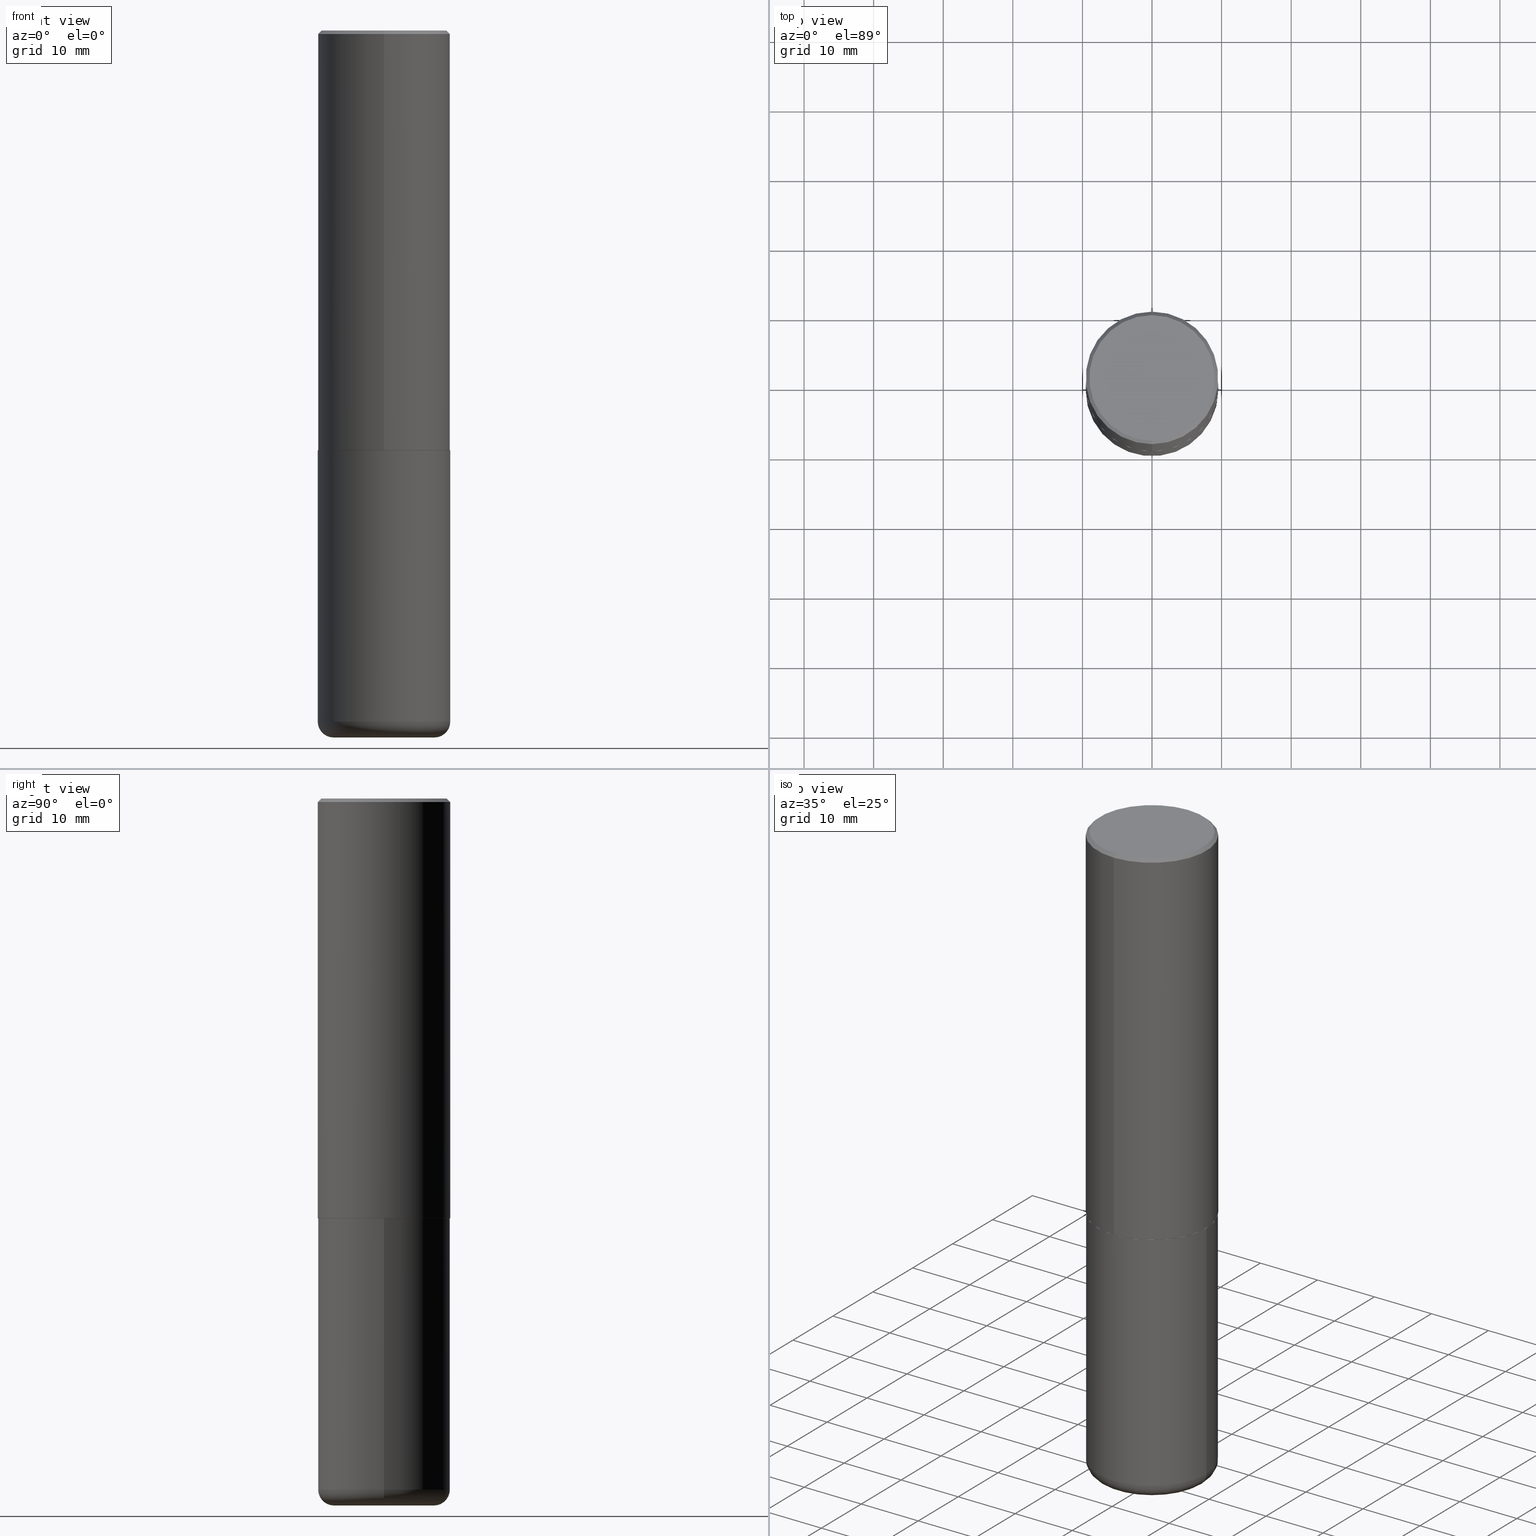
[diagram: canonical four-view strip — front | top / right | iso, engineering-drawing reading convention]
A machine part, canonical four-view strip (front | top / right | iso — engineering-drawing reading convention). The complete STEP part file that produces these views, byte-faithful:
ISO-10303-21;
HEADER;
FILE_DESCRIPTION (( 'STEP AP203' ),
    '1' );
FILE_NAME ('37226.STEP',
    '2024-03-01T22:18:53',
    ( '' ),
    ( '' ),
    'SwSTEP 2.0',
    'SolidWorks 2023',
    '' );
FILE_SCHEMA (( 'CONFIG_CONTROL_DESIGN' ));
ENDSEC;

DATA;
#1 = CARTESIAN_POINT ( 'NONE',  ( -2.618611004132351200E-15, -0.3750000000000001665, 1.309785868171475725E-15 ) ) ;
#2 = ADVANCED_FACE ( 'NONE', ( #352 ), #25, .T. ) ;
#3 = CARTESIAN_POINT ( 'NONE',  ( 2.618611004132350411E-15, 0.3749999999999999445, -0.02000000000000141595 ) ) ;
#4 = EDGE_CURVE ( 'NONE', #316, #211, #69, .T. ) ;
#5 = CONICAL_SURFACE ( 'NONE', #128, 0.3750000000000000555, 0.7853981633974456145 ) ;
#6 = CARTESIAN_POINT ( 'NONE',  ( 2.478951750578623026E-15, 0.3549999999999997602, -1.105245105140992969E-15 ) ) ;
#7 = DIRECTION ( 'NONE',  ( -6.982962677686265922E-15, -1.000000000000000000, 3.494488891895536035E-15 ) ) ;
#8 = LINE ( 'NONE', #137, #309 ) ;
#9 = CC_DESIGN_APPROVAL ( #40, ( #273 ) ) ;
#10 = CC_DESIGN_DATE_AND_TIME_ASSIGNMENT ( #190, #153, ( #273 ) ) ;
#11 = DIRECTION ( 'NONE',  ( 1.000000000000000000, -6.982962677686266711E-15, 0.000000000000000000 ) ) ;
#12 = CARTESIAN_POINT ( 'NONE',  ( -0.3749999999999999445, -1.098715677577632652E-14, -3.910000000000000142 ) ) ;
#13 = DIRECTION ( 'NONE',  ( -6.982962677686266711E-15, -1.000000000000000000, 3.652203200085913145E-15 ) ) ;
#14 = EDGE_CURVE ( 'NONE', #244, #279, #59, .T. ) ;
#15 = DIRECTION ( 'NONE',  ( 1.000000000000000000, -6.982962677686263555E-15, 4.883557194083111219E-29 ) ) ;
#16 = CIRCLE ( 'NONE', #31, 0.08999999999999992728 ) ;
#17 = CC_DESIGN_APPROVAL ( #369, ( #173 ) ) ;
#18 = ORIENTED_EDGE ( 'NONE', *, *, #14, .F. ) ;
#19 = AXIS2_PLACEMENT_3D ( 'NONE', #36, #391, #165 ) ;
#20 = DIRECTION ( 'NONE',  ( 1.000000000000000000, -6.982962677686266711E-15, 4.876176775795935793E-29 ) ) ;
#21 = VERTEX_POINT ( 'NONE', #407 ) ;
#22 = EDGE_CURVE ( 'NONE', #377, #224, #260, .T. ) ;
#23 = APPLICATION_PROTOCOL_DEFINITION ( 'international standard', 'config_control_design', 1994, #34 ) ;
#24 = CARTESIAN_POINT ( 'NONE',  ( 5.803419400614030161E-29, -8.291817736104219412E-15, -2.373999999999999666 ) ) ;
#25 = CYLINDRICAL_SURFACE ( 'NONE', #79, 0.3749999999999999445 ) ;
#26 = ORIENTED_EDGE ( 'NONE', *, *, #87, .T. ) ;
#27 = FACE_OUTER_BOUND ( 'NONE', #48, .T. ) ;
#28 = ADVANCED_FACE ( 'NONE', ( #217 ), #349, .T. ) ;
#29 = PERSON_AND_ORGANIZATION ( #155, #193 ) ;
#30 = ORIENTED_EDGE ( 'NONE', *, *, #132, .T. ) ;
#31 = AXIS2_PLACEMENT_3D ( 'NONE', #200, #333, #41 ) ;
#32 = ADVANCED_FACE ( 'NONE', ( #27 ), #181, .T. ) ;
#33 = CARTESIAN_POINT ( 'NONE',  ( 5.803419400614030161E-29, -8.291817736104219412E-15, -2.373999999999999666 ) ) ;
#34 = APPLICATION_CONTEXT ( 'configuration controlled 3d designs of mechanical parts and assemblies' ) ;
#35 = CARTESIAN_POINT ( 'NONE',  ( 5.805863974919259746E-29, -8.295310498419343824E-15, -2.375000000000000000 ) ) ;
#36 = CARTESIAN_POINT ( 'NONE',  ( 4.889148610458350090E-31, -6.985524630247905373E-17, -0.02000000000000010797 ) ) ;
#37 = AXIS2_PLACEMENT_3D ( 'NONE', #33, #102, #363 ) ;
#38 = PLANE ( 'NONE',  #42 ) ;
#39 = DIRECTION ( 'NONE',  ( -2.444574305229161733E-29, 3.492762315123933951E-15, 1.000000000000000000 ) ) ;
#40 = APPROVAL ( #251, 'UNSPECIFIED' ) ;
#41 = DIRECTION ( 'NONE',  ( 1.000000000000000000, -6.982962677686273810E-15, 0.000000000000000000 ) ) ;
#42 = AXIS2_PLACEMENT_3D ( 'NONE', #396, #233, #259 ) ;
#43 = CARTESIAN_POINT ( 'NONE',  ( 2.660982545421634357E-15, 0.3739999999999917835, -2.375000000000001776 ) ) ;
#44 = SHAPE_DEFINITION_REPRESENTATION ( #103, #313 ) ;
#45 = CARTESIAN_POINT ( 'NONE',  ( -2.572686749164323547E-15, -0.3750000000000001110, -0.01999999999999879652 ) ) ;
#46 = EDGE_LOOP ( 'NONE', ( #161, #399, #275, #325 ) ) ;
#47 = DIRECTION ( 'NONE',  ( -6.982962677686266711E-15, -1.000000000000000000, 3.652203200085913145E-15 ) ) ;
#48 = EDGE_LOOP ( 'NONE', ( #183, #143, #337, #242 ) ) ;
#49 = TOROIDAL_SURFACE ( 'NONE', #65, 0.2850000000000000311, 0.08999999999999989952 ) ;
#50 = DIRECTION ( 'NONE',  ( -2.444574305229161733E-29, 3.492762315123933951E-15, 1.000000000000000000 ) ) ;
#51 = ORIENTED_EDGE ( 'NONE', *, *, #416, .F. ) ;
#52 = CC_DESIGN_PERSON_AND_ORGANIZATION_ASSIGNMENT ( #29, #381, ( #291 ) ) ;
#53 = CALENDAR_DATE ( 2024, 1, 3 ) ;
#54 = VERTEX_POINT ( 'NONE', #290 ) ;
#55 = PERSON_AND_ORGANIZATION ( #155, #193 ) ;
#56 = AXIS2_PLACEMENT_3D ( 'NONE', #35, #199, #196 ) ;
#57 = ORIENTED_EDGE ( 'NONE', *, *, #362, .T. ) ;
#58 = AXIS2_PLACEMENT_3D ( 'NONE', #412, #62, #410 ) ;
#59 = CIRCLE ( 'NONE', #400, 0.3750000000000002776 ) ;
#60 = PERSON_AND_ORGANIZATION ( #155, #193 ) ;
#61 = ORIENTED_EDGE ( 'NONE', *, *, #174, .F. ) ;
#62 = DIRECTION ( 'NONE',  ( 0.000000000000000000, 0.000000000000000000, 1.000000000000000000 ) ) ;
#63 = ORIENTED_EDGE ( 'NONE', *, *, #76, .T. ) ;
#64 = DIRECTION ( 'NONE',  ( 1.000000000000000000, -6.982962677686266711E-15, 4.876176775795935793E-29 ) ) ;
#65 = AXIS2_PLACEMENT_3D ( 'NONE', #305, #404, #15 ) ;
#66 = CARTESIAN_POINT ( 'NONE',  ( 5.805863974919259746E-29, -8.295310498419343824E-15, -2.375000000000000000 ) ) ;
#67 = DIRECTION ( 'NONE',  ( 6.982962677686265922E-15, 1.000000000000000000, -3.492762315123933951E-15 ) ) ;
#68 = CARTESIAN_POINT ( 'NONE',  ( -2.611628041454605626E-15, -0.3740000000000082703, -2.374999999999998668 ) ) ;
#69 = CIRCLE ( 'NONE', #331, 0.3739999999999999991 ) ;
#70 = AXIS2_PLACEMENT_3D ( 'NONE', #171, #301, #11 ) ;
#71 = AXIS2_PLACEMENT_3D ( 'NONE', #66, #296, #195 ) ;
#72 = PLANE ( 'NONE',  #71 ) ;
#73 = CARTESIAN_POINT ( 'NONE',  ( -0.2850000000000000311, -1.162664523796041410E-14, -3.910000000000000142 ) ) ;
#74 = CARTESIAN_POINT ( 'NONE',  ( 2.664535259100406068E-15, 0.3749999999999920619, -2.374000000000001442 ) ) ;
#75 = ORIENTED_EDGE ( 'NONE', *, *, #174, .T. ) ;
#76 = EDGE_CURVE ( 'NONE', #346, #224, #360, .T. ) ;
#77 = VECTOR ( 'NONE', #272, 39.37007874015748854 ) ;
#78 = DIRECTION ( 'NONE',  ( -2.445468806185136597E-29, 3.491481338843145583E-15, 1.000000000000000000 ) ) ;
#79 = AXIS2_PLACEMENT_3D ( 'NONE', #154, #281, #64 ) ;
#80 = EDGE_LOOP ( 'NONE', ( #405, #320 ) ) ;
#81 = CARTESIAN_POINT ( 'NONE',  ( -0.2850000000000000311, -1.146401766711631116E-14, -4.000000000000000000 ) ) ;
#82 = FACE_OUTER_BOUND ( 'NONE', #418, .T. ) ;
#83 = CONICAL_SURFACE ( 'NONE', #326, 0.3739999999999999991, 0.7853981633974141952 ) ;
#84 = APPROVAL_DATE_TIME ( #254, #202 ) ;
#85 = LOCAL_TIME ( 17, 18, 53.00000000000000000, #248 ) ;
#86 = ORIENTED_EDGE ( 'NONE', *, *, #132, .F. ) ;
#87 = EDGE_CURVE ( 'NONE', #385, #215, #372, .T. ) ;
#88 = COORDINATED_UNIVERSAL_TIME_OFFSET ( 5, 0, .BEHIND. ) ;
#89 = ORIENTED_EDGE ( 'NONE', *, *, #121, .F. ) ;
#90 = CALENDAR_DATE ( 2024, 1, 3 ) ;
#91 = DIRECTION ( 'NONE',  ( 1.000000000000000000, -6.982962677686266711E-15, 0.000000000000000000 ) ) ;
#92 = ADVANCED_FACE ( 'NONE', ( #105 ), #100, .F. ) ;
#93 = APPROVAL_STATUS ( 'not_yet_approved' ) ;
#94 = AXIS2_PLACEMENT_3D ( 'NONE', #123, #247, #91 ) ;
#95 = ORIENTED_EDGE ( 'NONE', *, *, #311, .F. ) ;
#96 = CIRCLE ( 'NONE', #232, 0.2850000000000000311 ) ;
#97 = ORIENTED_EDGE ( 'NONE', *, *, #151, .F. ) ;
#98 = ORIENTED_EDGE ( 'NONE', *, *, #208, .T. ) ;
#99 = ADVANCED_FACE ( 'NONE', ( #231 ), #72, .F. ) ;
#100 = PLANE ( 'NONE',  #252 ) ;
#101 = AXIS2_PLACEMENT_3D ( 'NONE', #243, #376, #335 ) ;
#102 = DIRECTION ( 'NONE',  ( -2.444574305229161733E-29, 3.492762315123933951E-15, 1.000000000000000000 ) ) ;
#103 = PRODUCT_DEFINITION_SHAPE ( 'NONE', 'NONE',  #273 ) ;
#104 = CARTESIAN_POINT ( 'NONE',  ( 2.618611004132350411E-15, 0.3749999999999999445, -0.02000000000000141595 ) ) ;
#105 = FACE_OUTER_BOUND ( 'NONE', #249, .T. ) ;
#106 = CIRCLE ( 'NONE', #358, 0.3549999999999997602 ) ;
#107 = LOCAL_TIME ( 17, 18, 53.00000000000000000, #129 ) ;
#108 = FACE_OUTER_BOUND ( 'NONE', #212, .T. ) ;
#109 = DIRECTION ( 'NONE',  ( 2.438088387897960049E-29, -3.491481338843145188E-15, -1.000000000000000000 ) ) ;
#110 = EDGE_CURVE ( 'NONE', #316, #279, #8, .T. ) ;
#111 = CARTESIAN_POINT ( 'NONE',  ( 9.781875224740546387E-29, -1.396592535537258233E-14, -4.000000000000000000 ) ) ;
#112 = ORIENTED_EDGE ( 'NONE', *, *, #4, .F. ) ;
#113 = VECTOR ( 'NONE', #138, 39.37007874015748854 ) ;
#114 = MANIFOLD_SOLID_BREP ( 'Body-Move/Copy2[1]', #277 ) ;
#115 = CARTESIAN_POINT ( 'NONE',  ( 0.3750000000000000555, -1.091087918388482013E-14, -2.375000000000000000 ) ) ;
#116 = ORIENTED_EDGE ( 'NONE', *, *, #110, .T. ) ;
#117 = CARTESIAN_POINT ( 'NONE',  ( -2.618611004132293613E-15, -0.3750000000000085487, -2.373999999999998334 ) ) ;
#118 = DIRECTION ( 'NONE',  ( -2.444574305229161733E-29, 3.492762315123933951E-15, 1.000000000000000000 ) ) ;
#119 = EDGE_CURVE ( 'NONE', #211, #316, #276, .T. ) ;
#120 = ORIENTED_EDGE ( 'NONE', *, *, #119, .F. ) ;
#121 = EDGE_CURVE ( 'NONE', #21, #215, #332, .T. ) ;
#122 = PERSON_AND_ORGANIZATION_ROLE ( 'creator' ) ;
#123 = CARTESIAN_POINT ( 'NONE',  ( 5.807988414689699417E-29, -8.292268179752470118E-15, -2.375000000000000000 ) ) ;
#124 = DIMENSIONAL_EXPONENTS ( 1.000000000000000000, 0.000000000000000000, 0.000000000000000000, 0.000000000000000000, 0.000000000000000000, 0.000000000000000000, 0.000000000000000000 ) ;
#125 = MECHANICAL_CONTEXT ( 'NONE', #34, 'mechanical' ) ;
#126 = ORIENTED_EDGE ( 'NONE', *, *, #110, .F. ) ;
#127 = VERTEX_POINT ( 'NONE', #299 ) ;
#128 = AXIS2_PLACEMENT_3D ( 'NONE', #306, #239, #373 ) ;
#129 = COORDINATED_UNIVERSAL_TIME_OFFSET ( 5, 0, .BEHIND. ) ;
#130 = ORIENTED_EDGE ( 'NONE', *, *, #22, .F. ) ;
#131 = DIRECTION ( 'NONE',  ( -2.444574305229161733E-29, 3.492762315123933951E-15, 1.000000000000000000 ) ) ;
#132 = EDGE_CURVE ( 'NONE', #215, #385, #168, .T. ) ;
#133 = CARTESIAN_POINT ( 'NONE',  ( 4.889148610458350090E-31, -6.985524630247905373E-17, -0.02000000000000010797 ) ) ;
#134 = AXIS2_PLACEMENT_3D ( 'NONE', #304, #406, #210 ) ;
#135 = CARTESIAN_POINT ( 'NONE',  ( 0.3749999999999999445, -2.618611004132349622E-15, 1.828566290923475642E-29 ) ) ;
#136 = CC_DESIGN_PERSON_AND_ORGANIZATION_ASSIGNMENT ( #246, #216, ( #220 ) ) ;
#137 = CARTESIAN_POINT ( 'NONE',  ( 2.657429831742832670E-15, 0.3739999999999917835, -2.375000000000001776 ) ) ;
#138 = DIRECTION ( 'NONE',  ( 4.937700262164533054E-15, 0.7071067811865430208, -0.7071067811865517916 ) ) ;
#139 = APPROVAL_PERSON_ORGANIZATION ( #314, #202, #324 ) ;
#140 = CYLINDRICAL_SURFACE ( 'NONE', #317, 0.3749999999999999445 ) ;
#141 = EDGE_CURVE ( 'NONE', #54, #21, #402, .T. ) ;
#142 = CARTESIAN_POINT ( 'NONE',  ( -2.611628041454605626E-15, -0.3740000000000082703, -2.374999999999998668 ) ) ;
#143 = ORIENTED_EDGE ( 'NONE', *, *, #167, .T. ) ;
#144 = CARTESIAN_POINT ( 'NONE',  ( -6.584975069595768119E-45, 9.408489944411256093E-31, 2.693710334560058270E-16 ) ) ;
#145 = ORIENTED_EDGE ( 'NONE', *, *, #141, .T. ) ;
#146 = FACE_OUTER_BOUND ( 'NONE', #179, .T. ) ;
#147 = ORIENTED_EDGE ( 'NONE', *, *, #151, .T. ) ;
#148 = CC_DESIGN_PERSON_AND_ORGANIZATION_ASSIGNMENT ( #283, #122, ( #220 ) ) ;
#149 = CARTESIAN_POINT ( 'NONE',  ( 9.561783032183883600E-29, -1.365169203487670064E-14, -3.910000000000000142 ) ) ;
#150 = DIRECTION ( 'NONE',  ( -2.444574305229161733E-29, 3.492762315123933951E-15, 1.000000000000000000 ) ) ;
#151 = EDGE_CURVE ( 'NONE', #54, #385, #300, .T. ) ;
#152 = DIRECTION ( 'NONE',  ( -6.982962677686266711E-15, -1.000000000000000000, 3.652203200085913145E-15 ) ) ;
#153 = DATE_TIME_ROLE ( 'creation_date' ) ;
#154 = CARTESIAN_POINT ( 'NONE',  ( 0.000000000000000000, 0.000000000000000000, 0.000000000000000000 ) ) ;
#155 = PERSON ( 'UNSPECIFIED', 'UNSPECIFIED', 'UNSPECIFIED', ('UNSPECIFIED'), ('UNSPECIFIED'), ('UNSPECIFIED') ) ;
#156 = CALENDAR_DATE ( 2024, 1, 3 ) ;
#157 = ORIENTED_EDGE ( 'NONE', *, *, #315, .F. ) ;
#158 = LENGTH_MEASURE_WITH_UNIT ( LENGTH_MEASURE( 0.02539999999999999897 ), #319 );
#159 = PERSON_AND_ORGANIZATION_ROLE ( 'creator' ) ;
#160 = AXIS2_PLACEMENT_3D ( 'NONE', #111, #237, #370 ) ;
#161 = ORIENTED_EDGE ( 'NONE', *, *, #76, .F. ) ;
#162 = CC_DESIGN_SECURITY_CLASSIFICATION ( #173, ( #220 ) ) ;
#163 = ADVANCED_FACE ( 'NONE', ( #108 ), #38, .T. ) ;
#164 = DIRECTION ( 'NONE',  ( -1.000000000000000000, 7.105427357600996337E-15, 0.000000000000000000 ) ) ;
#165 = DIRECTION ( 'NONE',  ( -6.982962677686265922E-15, -1.000000000000000000, 3.494488891895536035E-15 ) ) ;
#166 = LINE ( 'NONE', #1, #282 ) ;
#167 = EDGE_CURVE ( 'NONE', #413, #346, #218, .T. ) ;
#168 = CIRCLE ( 'NONE', #365, 0.3750000000000000555 ) ;
#169 = CARTESIAN_POINT ( 'NONE',  ( 9.561783032183883600E-29, -1.365169203487670064E-14, -3.910000000000000142 ) ) ;
#170 = DIRECTION ( 'NONE',  ( -6.982962677686266711E-15, -1.000000000000000000, 3.492762315123933556E-15 ) ) ;
#171 = CARTESIAN_POINT ( 'NONE',  ( 5.807988414689699417E-29, -8.292268179752470118E-15, -2.375000000000000000 ) ) ;
#172 = APPROVAL_DATE_TIME ( #355, #369 ) ;
#173 = SECURITY_CLASSIFICATION ( '', '', #348 ) ;
#174 = EDGE_CURVE ( 'NONE', #279, #244, #409, .T. ) ;
#175 = FACE_OUTER_BOUND ( 'NONE', #245, .T. ) ;
#176 = FACE_OUTER_BOUND ( 'NONE', #343, .T. ) ;
#177 = ORIENTED_EDGE ( 'NONE', *, *, #362, .F. ) ;
#178 = CARTESIAN_POINT ( 'NONE',  ( 2.664535259100376486E-15, 0.3750000000000001665, -1.309785868171475725E-15 ) ) ;
#179 = EDGE_LOOP ( 'NONE', ( #293, #255, #354, #157 ) ) ;
#180 = ADVANCED_FACE ( 'NONE', ( #327 ), #330, .T. ) ;
#181 = TOROIDAL_SURFACE ( 'NONE', #359, 0.2850000000000000311, 0.08999999999999989952 ) ;
#182 = DIRECTION ( 'NONE',  ( -2.445468806185136597E-29, 3.491481338843145583E-15, 1.000000000000000000 ) ) ;
#183 = ORIENTED_EDGE ( 'NONE', *, *, #236, .T. ) ;
#184 = CIRCLE ( 'NONE', #160, 0.2850000000000000311 ) ;
#185 = PERSON_AND_ORGANIZATION_ROLE ( 'classification_officer' ) ;
#186 = CLOSED_SHELL ( 'NONE', ( #285, #180, #271, #408, #28, #344, #99, #92 ) ) ;
#187 = CARTESIAN_POINT ( 'NONE',  ( 0.000000000000000000, 0.000000000000000000, 0.000000000000000000 ) ) ;
#188 =( CONVERSION_BASED_UNIT ( 'INCH', #158 ) LENGTH_UNIT ( ) NAMED_UNIT ( #124 ) );
#189 = DIRECTION ( 'NONE',  ( -2.444574305229161733E-29, 3.492762315123933951E-15, 1.000000000000000000 ) ) ;
#190 = DATE_AND_TIME ( #53, #342 ) ;
#191 = EDGE_LOOP ( 'NONE', ( #51, #75, #98, #86 ) ) ;
#192 = CC_DESIGN_PERSON_AND_ORGANIZATION_ASSIGNMENT ( #345, #159, ( #273 ) ) ;
#193 = ORGANIZATION ( 'UNSPECIFIED', 'UNSPECIFIED', '' ) ;
#194 = ORIENTED_EDGE ( 'NONE', *, *, #121, .T. ) ;
#195 = DIRECTION ( 'NONE',  ( -6.982962677686265922E-15, -1.000000000000000000, 3.492762315123933951E-15 ) ) ;
#196 = DIRECTION ( 'NONE',  ( -6.982962677686266711E-15, -1.000000000000000000, 3.652203200085913145E-15 ) ) ;
#197 = DIRECTION ( 'NONE',  ( 2.444574305229161733E-29, -3.492762315123933951E-15, -1.000000000000000000 ) ) ;
#198 = CONICAL_SURFACE ( 'NONE', #302, 0.3739999999999999991, 0.7853981633974141952 ) ;
#199 = DIRECTION ( 'NONE',  ( -2.444574305229161733E-29, 3.492762315123933951E-15, 1.000000000000000000 ) ) ;
#200 = CARTESIAN_POINT ( 'NONE',  ( 0.2850000000000000311, -1.564183639801728729E-14, -3.910000000000000142 ) ) ;
#201 = APPROVAL_ROLE ( '' ) ;
#202 = APPROVAL ( #93, 'UNSPECIFIED' ) ;
#203 = DIRECTION ( 'NONE',  ( -2.445468806185136597E-29, 3.491481338843145583E-15, 1.000000000000000000 ) ) ;
#204 =( GEOMETRIC_REPRESENTATION_CONTEXT ( 3 ) GLOBAL_UNCERTAINTY_ASSIGNED_CONTEXT ( ( #263 ) ) GLOBAL_UNIT_ASSIGNED_CONTEXT ( ( #188, #417, #289 ) ) REPRESENTATION_CONTEXT ( 'NONE', 'WORKASPACE' ) );
#205 = CARTESIAN_POINT ( 'NONE',  ( 5.805863974919259746E-29, -8.295310498419343824E-15, -2.375000000000000000 ) ) ;
#206 = VERTEX_POINT ( 'NONE', #295 ) ;
#207 = LINE ( 'NONE', #178, #308 ) ;
#208 = EDGE_CURVE ( 'NONE', #244, #385, #166, .T. ) ;
#209 = EDGE_LOOP ( 'NONE', ( #120, #112 ) ) ;
#210 = DIRECTION ( 'NONE',  ( 6.982962677686265922E-15, 1.000000000000000000, -3.494488891895536035E-15 ) ) ;
#211 = VERTEX_POINT ( 'NONE', #68 ) ;
#212 = EDGE_LOOP ( 'NONE', ( #374, #253 ) ) ;
#213 = EDGE_CURVE ( 'NONE', #127, #377, #298, .T. ) ;
#214 = APPROVAL_DATE_TIME ( #222, #40 ) ;
#215 = VERTEX_POINT ( 'NONE', #104 ) ;
#216 = PERSON_AND_ORGANIZATION_ROLE ( 'design_supplier' ) ;
#217 = FACE_OUTER_BOUND ( 'NONE', #191, .T. ) ;
#218 = CIRCLE ( 'NONE', #238, 0.08999999999999992728 ) ;
#219 = DATE_AND_TIME ( #286, #85 ) ;
#220 = PRODUCT_DEFINITION_FORMATION_WITH_SPECIFIED_SOURCE ( 'ANY', '', #291, .NOT_KNOWN. ) ;
#221 = EDGE_LOOP ( 'NONE', ( #356, #270, #339, #307 ) ) ;
#222 = DATE_AND_TIME ( #90, #297 ) ;
#223 = EDGE_LOOP ( 'NONE', ( #240, #63, #130, #388 ) ) ;
#224 = VERTEX_POINT ( 'NONE', #395 ) ;
#225 = CONICAL_SURFACE ( 'NONE', #134, 0.3750000000000000555, 0.7853981633974456145 ) ;
#226 = DIRECTION ( 'NONE',  ( 7.105427357601001859E-15, 1.000000000000000000, -3.491481338843145583E-15 ) ) ;
#227 = APPLICATION_CONTEXT ( 'configuration controlled 3d designs of mechanical parts and assemblies' ) ;
#228 = APPROVAL_PERSON_ORGANIZATION ( #60, #369, #201 ) ;
#229 = CARTESIAN_POINT ( 'NONE',  ( -6.584975069595768119E-45, 9.408489944411256093E-31, 2.693710334560058270E-16 ) ) ;
#230 = DIRECTION ( 'NONE',  ( -2.444574305229161733E-29, 3.492762315123933951E-15, 1.000000000000000000 ) ) ;
#231 = FACE_OUTER_BOUND ( 'NONE', #209, .T. ) ;
#232 = AXIS2_PLACEMENT_3D ( 'NONE', #278, #182, #310 ) ;
#233 = DIRECTION ( 'NONE',  ( 2.438088387897960049E-29, -3.491481338843145188E-15, -1.000000000000000000 ) ) ;
#234 = ADVANCED_FACE ( 'NONE', ( #146 ), #49, .T. ) ;
#235 = DIRECTION ( 'NONE',  ( -1.000000000000000000, 6.982962677686265922E-15, -4.876176775795935793E-29 ) ) ;
#236 = EDGE_CURVE ( 'NONE', #206, #413, #96, .T. ) ;
#237 = DIRECTION ( 'NONE',  ( -2.445468806185136597E-29, 3.491481338843145583E-15, 1.000000000000000000 ) ) ;
#238 = AXIS2_PLACEMENT_3D ( 'NONE', #73, #226, #164 ) ;
#239 = DIRECTION ( 'NONE',  ( 2.444574305229161733E-29, -3.492762315123933951E-15, -1.000000000000000000 ) ) ;
#240 = ORIENTED_EDGE ( 'NONE', *, *, #294, .T. ) ;
#241 = FACE_OUTER_BOUND ( 'NONE', #46, .T. ) ;
#242 = ORIENTED_EDGE ( 'NONE', *, *, #321, .F. ) ;
#243 = CARTESIAN_POINT ( 'NONE',  ( 9.561783032183883600E-29, -1.365169203487670064E-14, -3.910000000000000142 ) ) ;
#244 = VERTEX_POINT ( 'NONE', #117 ) ;
#245 = EDGE_LOOP ( 'NONE', ( #126, #382, #57, #61 ) ) ;
#246 = PERSON_AND_ORGANIZATION ( #155, #193 ) ;
#247 = DIRECTION ( 'NONE',  ( -2.445468806185136597E-29, 3.491481338843145583E-15, 1.000000000000000000 ) ) ;
#248 = COORDINATED_UNIVERSAL_TIME_OFFSET ( 5, 0, .BEHIND. ) ;
#249 = EDGE_LOOP ( 'NONE', ( #384, #145 ) ) ;
#250 = AXIS2_PLACEMENT_3D ( 'NONE', #398, #109, #235 ) ;
#251 = APPROVAL_STATUS ( 'not_yet_approved' ) ;
#252 = AXIS2_PLACEMENT_3D ( 'NONE', #6, #197, #67 ) ;
#253 = ORIENTED_EDGE ( 'NONE', *, *, #380, .F. ) ;
#254 = DATE_AND_TIME ( #156, #107 ) ;
#255 = ORIENTED_EDGE ( 'NONE', *, *, #380, .T. ) ;
#256 = COORDINATED_UNIVERSAL_TIME_OFFSET ( 5, 0, .BEHIND. ) ;
#257 = DIRECTION ( 'NONE',  ( -4.851104656540950075E-15, -0.7071067811865479058, -0.7071067811865469066 ) ) ;
#258 = CIRCLE ( 'NONE', #292, 0.3749999999999999445 ) ;
#259 = DIRECTION ( 'NONE',  ( -1.000000000000000000, 6.982962677686265922E-15, -4.876176775795935793E-29 ) ) ;
#260 = CIRCLE ( 'NONE', #94, 0.3750000000000000555 ) ;
#261 = DIRECTION ( 'NONE',  ( -2.445468806185136877E-29, 3.491481338843145188E-15, 1.000000000000000000 ) ) ;
#262 = MANIFOLD_SOLID_BREP ( 'Body-Move/Copy2[2]', #186 ) ;
#263 = UNCERTAINTY_MEASURE_WITH_UNIT (LENGTH_MEASURE( 1.000000000000000082E-05 ), #188, 'distance_accuracy_value', 'NONE');
#264 = DIRECTION ( 'NONE',  ( -2.444574305229161733E-29, 3.492762315123933951E-15, 1.000000000000000000 ) ) ;
#265 = ADVANCED_FACE ( 'NONE', ( #241 ), #140, .T. ) ;
#266 = CARTESIAN_POINT ( 'NONE',  ( -2.572686749164323547E-15, -0.3750000000000001110, -0.01999999999999879652 ) ) ;
#267 = CIRCLE ( 'NONE', #101, 0.3749999999999999445 ) ;
#268 = CC_DESIGN_APPROVAL ( #202, ( #220 ) ) ;
#269 = DIRECTION ( 'NONE',  ( -6.982962677686266711E-15, -1.000000000000000000, 3.492762315123933556E-15 ) ) ;
#270 = ORIENTED_EDGE ( 'NONE', *, *, #416, .T. ) ;
#271 = ADVANCED_FACE ( 'NONE', ( #82 ), #225, .T. ) ;
#272 = DIRECTION ( 'NONE',  ( -4.937700262164378437E-15, -0.7071067811865208164, 0.7071067811865739960 ) ) ;
#273 = PRODUCT_DEFINITION ( 'UNKNOWN', '', #220, #303 ) ;
#274 = CARTESIAN_POINT ( 'NONE',  ( 5.805863974919259746E-29, -8.295310498419343824E-15, -2.375000000000000000 ) ) ;
#275 = ORIENTED_EDGE ( 'NONE', *, *, #213, .T. ) ;
#276 = CIRCLE ( 'NONE', #56, 0.3739999999999999991 ) ;
#277 = CLOSED_SHELL ( 'NONE', ( #2, #32, #288, #265, #234, #163 ) ) ;
#278 = CARTESIAN_POINT ( 'NONE',  ( 9.781875224740546387E-29, -1.396592535537258233E-14, -4.000000000000000000 ) ) ;
#279 = VERTEX_POINT ( 'NONE', #74 ) ;
#280 = DIRECTION ( 'NONE',  ( 1.000000000000000000, -6.982962677686263555E-15, 0.000000000000000000 ) ) ;
#281 = DIRECTION ( 'NONE',  ( -2.445468806185136597E-29, 3.491481338843145583E-15, 1.000000000000000000 ) ) ;
#282 = VECTOR ( 'NONE', #131, 39.37007874015748143 ) ;
#283 = PERSON_AND_ORGANIZATION ( #155, #193 ) ;
#284 = DIRECTION ( 'NONE',  ( -2.444574305229161733E-29, 3.492762315123933951E-15, 1.000000000000000000 ) ) ;
#285 = ADVANCED_FACE ( 'NONE', ( #338 ), #198, .T. ) ;
#286 = CALENDAR_DATE ( 2024, 1, 3 ) ;
#287 = DIRECTION ( 'NONE',  ( -6.982962677686266711E-15, -1.000000000000000000, 3.492762315123933556E-15 ) ) ;
#288 = ADVANCED_FACE ( 'NONE', ( #368 ), #336, .F. ) ;
#289 =( NAMED_UNIT ( * ) SI_UNIT ( $, .STERADIAN. ) SOLID_ANGLE_UNIT ( ) );
#290 = CARTESIAN_POINT ( 'NONE',  ( -2.504081769186607821E-15, -0.3549999999999997602, 1.509301655325001413E-15 ) ) ;
#291 = PRODUCT ( '37226', '37226', '', ( #125 ) ) ;
#292 = AXIS2_PLACEMENT_3D ( 'NONE', #149, #203, #280 ) ;
#293 = ORIENTED_EDGE ( 'NONE', *, *, #167, .F. ) ;
#294 = EDGE_CURVE ( 'NONE', #127, #346, #258, .T. ) ;
#295 = CARTESIAN_POINT ( 'NONE',  ( 0.2850000000000000311, -1.595606971851316740E-14, -4.000000000000000000 ) ) ;
#296 = DIRECTION ( 'NONE',  ( -2.444574305229161733E-29, 3.492762315123933951E-15, 1.000000000000000000 ) ) ;
#297 = LOCAL_TIME ( 17, 18, 53.00000000000000000, #88 ) ;
#298 = LINE ( 'NONE', #135, #386 ) ;
#299 = CARTESIAN_POINT ( 'NONE',  ( 0.3749999999999999445, -1.627030303900904751E-14, -3.910000000000000142 ) ) ;
#300 = LINE ( 'NONE', #266, #415 ) ;
#301 = DIRECTION ( 'NONE',  ( -2.445468806185136597E-29, 3.491481338843145583E-15, 1.000000000000000000 ) ) ;
#302 = AXIS2_PLACEMENT_3D ( 'NONE', #205, #50, #13 ) ;
#303 = DESIGN_CONTEXT ( 'detailed design', #227, 'design' ) ;
#304 = CARTESIAN_POINT ( 'NONE',  ( 4.889148610458350090E-31, -6.985524630247905373E-17, -0.02000000000000010797 ) ) ;
#305 = CARTESIAN_POINT ( 'NONE',  ( 9.561783032183883600E-29, -1.365169203487670064E-14, -3.910000000000000142 ) ) ;
#306 = CARTESIAN_POINT ( 'NONE',  ( 4.889148610458350090E-31, -6.985524630247905373E-17, -0.02000000000000010797 ) ) ;
#307 = ORIENTED_EDGE ( 'NONE', *, *, #208, .F. ) ;
#308 = VECTOR ( 'NONE', #150, 39.37007874015748143 ) ;
#309 = VECTOR ( 'NONE', #328, 39.37007874015748854 ) ;
#310 = DIRECTION ( 'NONE',  ( 1.000000000000000000, -6.982962677686266711E-15, 0.000000000000000000 ) ) ;
#311 = EDGE_CURVE ( 'NONE', #21, #54, #106, .T. ) ;
#312 = PERSON_AND_ORGANIZATION ( #155, #193 ) ;
#313 = ADVANCED_BREP_SHAPE_REPRESENTATION ( '37226', ( #114, #262, #58 ), #204 ) ;
#314 = PERSON_AND_ORGANIZATION ( #155, #193 ) ;
#315 = EDGE_CURVE ( 'NONE', #346, #127, #267, .T. ) ;
#316 = VERTEX_POINT ( 'NONE', #43 ) ;
#317 = AXIS2_PLACEMENT_3D ( 'NONE', #375, #78, #20 ) ;
#318 = VECTOR ( 'NONE', #367, 39.37007874015748143 ) ;
#319 =( LENGTH_UNIT ( ) NAMED_UNIT ( * ) SI_UNIT ( $, .METRE. ) );
#320 = ORIENTED_EDGE ( 'NONE', *, *, #347, .T. ) ;
#321 = EDGE_CURVE ( 'NONE', #206, #127, #16, .T. ) ;
#322 = APPROVAL_STATUS ( 'not_yet_approved' ) ;
#323 = DIRECTION ( 'NONE',  ( -2.444574305229161733E-29, 3.492762315123933951E-15, 1.000000000000000000 ) ) ;
#324 = APPROVAL_ROLE ( '' ) ;
#325 = ORIENTED_EDGE ( 'NONE', *, *, #347, .F. ) ;
#326 = AXIS2_PLACEMENT_3D ( 'NONE', #274, #401, #47 ) ;
#327 = FACE_OUTER_BOUND ( 'NONE', #221, .T. ) ;
#328 = DIRECTION ( 'NONE',  ( 5.024295867787889629E-15, 0.7071067811865257013, 0.7071067811865691111 ) ) ;
#329 = CARTESIAN_POINT ( 'NONE',  ( -0.3749999999999999445, 2.664535259100375303E-15, -1.844600658845589318E-29 ) ) ;
#330 = CYLINDRICAL_SURFACE ( 'NONE', #392, 0.3750000000000001665 ) ;
#331 = AXIS2_PLACEMENT_3D ( 'NONE', #414, #189, #152 ) ;
#332 = LINE ( 'NONE', #3, #113 ) ;
#333 = DIRECTION ( 'NONE',  ( -6.982962677686266711E-15, -1.000000000000000000, 3.491481338843145583E-15 ) ) ;
#334 = CALENDAR_DATE ( 2024, 1, 3 ) ;
#335 = DIRECTION ( 'NONE',  ( 1.000000000000000000, -6.982962677686263555E-15, 0.000000000000000000 ) ) ;
#336 = PLANE ( 'NONE',  #250 ) ;
#337 = ORIENTED_EDGE ( 'NONE', *, *, #294, .F. ) ;
#338 = FACE_OUTER_BOUND ( 'NONE', #389, .T. ) ;
#339 = ORIENTED_EDGE ( 'NONE', *, *, #87, .F. ) ;
#340 = CIRCLE ( 'NONE', #70, 0.3750000000000000555 ) ;
#341 = CC_DESIGN_DATE_AND_TIME_ASSIGNMENT ( #219, #351, ( #173 ) ) ;
#342 = LOCAL_TIME ( 17, 18, 53.00000000000000000, #353 ) ;
#343 = EDGE_LOOP ( 'NONE', ( #97, #95, #194, #30 ) ) ;
#344 = ADVANCED_FACE ( 'NONE', ( #175 ), #83, .T. ) ;
#345 = PERSON_AND_ORGANIZATION ( #155, #193 ) ;
#346 = VERTEX_POINT ( 'NONE', #12 ) ;
#347 = EDGE_CURVE ( 'NONE', #224, #377, #340, .T. ) ;
#348 = SECURITY_CLASSIFICATION_LEVEL ( 'unclassified' ) ;
#349 = CYLINDRICAL_SURFACE ( 'NONE', #364, 0.3750000000000001665 ) ;
#350 = AXIS2_PLACEMENT_3D ( 'NONE', #229, #230, #170 ) ;
#351 = DATE_TIME_ROLE ( 'classification_date' ) ;
#352 = FACE_OUTER_BOUND ( 'NONE', #223, .T. ) ;
#353 = COORDINATED_UNIVERSAL_TIME_OFFSET ( 5, 0, .BEHIND. ) ;
#354 = ORIENTED_EDGE ( 'NONE', *, *, #321, .T. ) ;
#355 = DATE_AND_TIME ( #334, #379 ) ;
#356 = ORIENTED_EDGE ( 'NONE', *, *, #14, .T. ) ;
#357 = PRODUCT_RELATED_PRODUCT_CATEGORY ( 'detail', '', ( #291 ) ) ;
#358 = AXIS2_PLACEMENT_3D ( 'NONE', #144, #118, #269 ) ;
#359 = AXIS2_PLACEMENT_3D ( 'NONE', #169, #366, #361 ) ;
#360 = LINE ( 'NONE', #329, #318 ) ;
#361 = DIRECTION ( 'NONE',  ( 1.000000000000000000, -6.982962677686263555E-15, 4.883557194083111219E-29 ) ) ;
#362 = EDGE_CURVE ( 'NONE', #211, #244, #397, .T. ) ;
#363 = DIRECTION ( 'NONE',  ( -6.982962677686266711E-15, -1.000000000000000000, 3.642463991552348591E-15 ) ) ;
#364 = AXIS2_PLACEMENT_3D ( 'NONE', #187, #323, #287 ) ;
#365 = AXIS2_PLACEMENT_3D ( 'NONE', #133, #39, #7 ) ;
#366 = DIRECTION ( 'NONE',  ( -2.445468806185136597E-29, 3.491481338843145583E-15, 1.000000000000000000 ) ) ;
#367 = DIRECTION ( 'NONE',  ( -2.445468806185136877E-29, 3.491481338843145188E-15, 1.000000000000000000 ) ) ;
#368 = FACE_OUTER_BOUND ( 'NONE', #80, .T. ) ;
#369 = APPROVAL ( #322, 'UNSPECIFIED' ) ;
#370 = DIRECTION ( 'NONE',  ( 1.000000000000000000, -6.982962677686266711E-15, 0.000000000000000000 ) ) ;
#371 = ORIENTED_EDGE ( 'NONE', *, *, #119, .T. ) ;
#372 = CIRCLE ( 'NONE', #19, 0.3750000000000000555 ) ;
#373 = DIRECTION ( 'NONE',  ( 6.982962677686265922E-15, 1.000000000000000000, -3.494488891895536035E-15 ) ) ;
#374 = ORIENTED_EDGE ( 'NONE', *, *, #236, .F. ) ;
#375 = CARTESIAN_POINT ( 'NONE',  ( 0.000000000000000000, 0.000000000000000000, 0.000000000000000000 ) ) ;
#376 = DIRECTION ( 'NONE',  ( -2.445468806185136597E-29, 3.491481338843145583E-15, 1.000000000000000000 ) ) ;
#377 = VERTEX_POINT ( 'NONE', #115 ) ;
#378 = APPROVAL_PERSON_ORGANIZATION ( #312, #40, #387 ) ;
#379 = LOCAL_TIME ( 17, 18, 53.00000000000000000, #256 ) ;
#380 = EDGE_CURVE ( 'NONE', #413, #206, #184, .T. ) ;
#381 = PERSON_AND_ORGANIZATION_ROLE ( 'design_owner' ) ;
#382 = ORIENTED_EDGE ( 'NONE', *, *, #4, .T. ) ;
#383 = APPLICATION_PROTOCOL_DEFINITION ( 'international standard', 'config_control_design', 1994, #227 ) ;
#384 = ORIENTED_EDGE ( 'NONE', *, *, #311, .T. ) ;
#385 = VERTEX_POINT ( 'NONE', #45 ) ;
#386 = VECTOR ( 'NONE', #261, 39.37007874015748143 ) ;
#387 = APPROVAL_ROLE ( '' ) ;
#388 = ORIENTED_EDGE ( 'NONE', *, *, #213, .F. ) ;
#389 = EDGE_LOOP ( 'NONE', ( #371, #116, #18, #177 ) ) ;
#390 = CC_DESIGN_PERSON_AND_ORGANIZATION_ASSIGNMENT ( #55, #185, ( #173 ) ) ;
#391 = DIRECTION ( 'NONE',  ( -2.444574305229161733E-29, 3.492762315123933951E-15, 1.000000000000000000 ) ) ;
#392 = AXIS2_PLACEMENT_3D ( 'NONE', #394, #264, #393 ) ;
#393 = DIRECTION ( 'NONE',  ( -6.982962677686266711E-15, -1.000000000000000000, 3.492762315123933556E-15 ) ) ;
#394 = CARTESIAN_POINT ( 'NONE',  ( 0.000000000000000000, 0.000000000000000000, 0.000000000000000000 ) ) ;
#395 = CARTESIAN_POINT ( 'NONE',  ( -0.3750000000000000555, -8.307444848214210473E-15, -2.375000000000000000 ) ) ;
#396 = CARTESIAN_POINT ( 'NONE',  ( 9.781875224740546387E-29, -1.396592535537258233E-14, -4.000000000000000000 ) ) ;
#397 = LINE ( 'NONE', #142, #77 ) ;
#398 = CARTESIAN_POINT ( 'NONE',  ( 5.807988414689699417E-29, -8.292268179752470118E-15, -2.375000000000000000 ) ) ;
#399 = ORIENTED_EDGE ( 'NONE', *, *, #315, .T. ) ;
#400 = AXIS2_PLACEMENT_3D ( 'NONE', #24, #284, #411 ) ;
#401 = DIRECTION ( 'NONE',  ( -2.444574305229161733E-29, 3.492762315123933951E-15, 1.000000000000000000 ) ) ;
#402 = CIRCLE ( 'NONE', #350, 0.3549999999999997602 ) ;
#403 = ORIENTED_EDGE ( 'NONE', *, *, #141, .F. ) ;
#404 = DIRECTION ( 'NONE',  ( -2.445468806185136597E-29, 3.491481338843145583E-15, 1.000000000000000000 ) ) ;
#405 = ORIENTED_EDGE ( 'NONE', *, *, #22, .T. ) ;
#406 = DIRECTION ( 'NONE',  ( 2.444574305229161733E-29, -3.492762315123933951E-15, -1.000000000000000000 ) ) ;
#407 = CARTESIAN_POINT ( 'NONE',  ( 2.548781377355486718E-15, 0.3549999999999997602, -9.705595884129897592E-16 ) ) ;
#408 = ADVANCED_FACE ( 'NONE', ( #176 ), #5, .T. ) ;
#409 = CIRCLE ( 'NONE', #37, 0.3750000000000002776 ) ;
#410 = DIRECTION ( 'NONE',  ( 1.000000000000000000, 0.000000000000000000, 0.000000000000000000 ) ) ;
#411 = DIRECTION ( 'NONE',  ( -6.982962677686266711E-15, -1.000000000000000000, 3.642463991552348591E-15 ) ) ;
#412 = CARTESIAN_POINT ( 'NONE',  ( 0.000000000000000000, 0.000000000000000000, 0.000000000000000000 ) ) ;
#413 = VERTEX_POINT ( 'NONE', #81 ) ;
#414 = CARTESIAN_POINT ( 'NONE',  ( 5.805863974919259746E-29, -8.295310498419343824E-15, -2.375000000000000000 ) ) ;
#415 = VECTOR ( 'NONE', #257, 39.37007874015748854 ) ;
#416 = EDGE_CURVE ( 'NONE', #279, #215, #207, .T. ) ;
#417 =( NAMED_UNIT ( * ) PLANE_ANGLE_UNIT ( ) SI_UNIT ( $, .RADIAN. ) );
#418 = EDGE_LOOP ( 'NONE', ( #403, #147, #26, #89 ) ) ;
ENDSEC;
END-ISO-10303-21;
